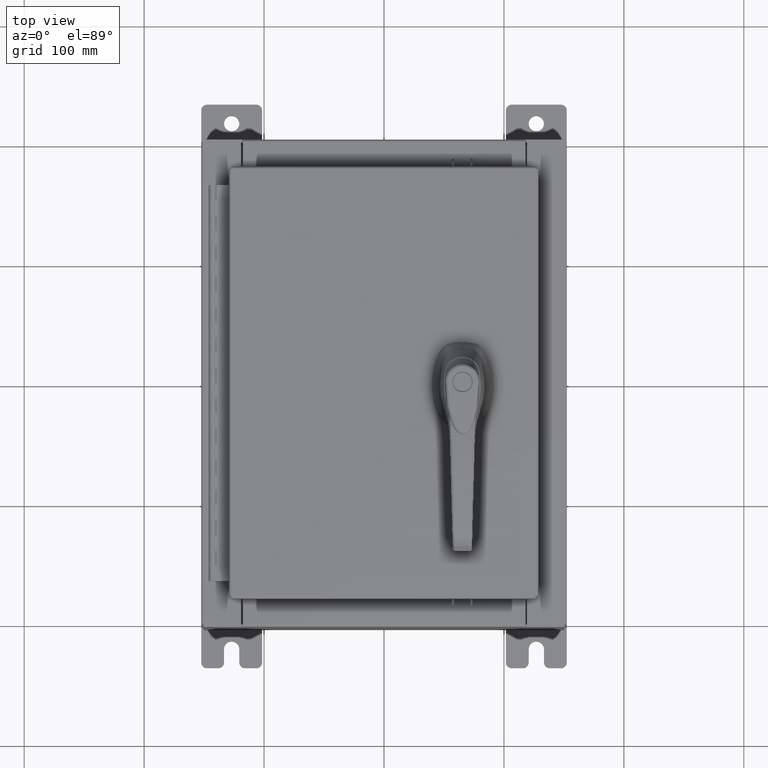
[diagram: clean part render]
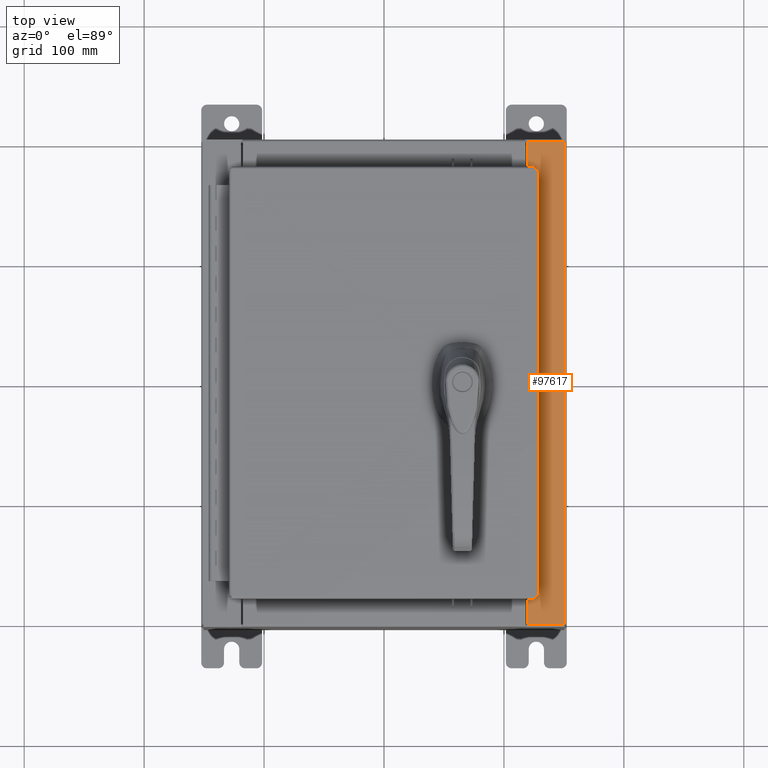
[diagram: same view with one face highlighted and labeled with its STEP entity id]
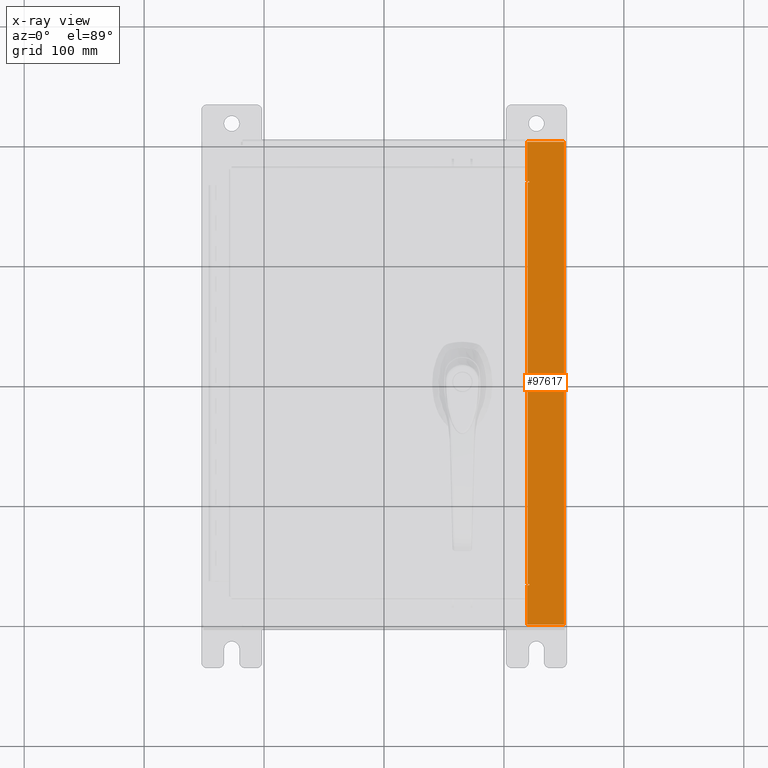
[diagram: x-ray of the same camera — body ghosted, the highlighted face saturated]
A machine part, top view. The second image highlights one B-rep face of the part: STEP entity #97617.
The next image is the same camera in x-ray: the body ghosted, the highlighted face saturated — about 0% of this face is hidden behind the body in this view.
In plain terms, the highlighted planar face has unit normal (-0, 0, -1).
Its self-contained STEP definition (entity closure, byte-faithful):
#1064 = LINE ( 'NONE', #106652, #42456 ) ;
#3250 = ORIENTED_EDGE ( 'NONE', *, *, #47122, .F. ) ;
#5049 = LINE ( 'NONE', #40311, #90470 ) ;
#6637 = CARTESIAN_POINT ( 'NONE',  ( 5.912300000000019700, -7.925300000000000000, 5.925300000000001800 ) ) ;
#7291 = EDGE_CURVE ( 'NONE', #14115, #98944, #51492, .T. ) ;
#9066 = CARTESIAN_POINT ( 'NONE',  ( 4.699700000000020400, 7.925300000000000000, 5.925300000000009800 ) ) ;
#10569 = DIRECTION ( 'NONE',  ( -1.000000000000000000, 0.0000000000000000000, 0.0000000000000000000 ) ) ;
#10730 = LINE ( 'NONE', #79950, #96224 ) ;
#12422 = AXIS2_PLACEMENT_3D ( 'NONE', #44236, #102202, #52582 ) ;
#14066 = DIRECTION ( 'NONE',  ( 1.000000000000000000, 0.0000000000000000000, 0.0000000000000000000 ) ) ;
#14115 = VERTEX_POINT ( 'NONE', #45835 ) ;
#15916 = VERTEX_POINT ( 'NONE', #52596 ) ;
#16168 = CARTESIAN_POINT ( 'NONE',  ( 4.712700000000021200, 6.593750000000000000, 5.925300000000009800 ) ) ;
#17125 = LINE ( 'NONE', #75991, #75364 ) ;
#18471 = DIRECTION ( 'NONE',  ( 1.000000000000000000, 8.915952981932975000E-016, -7.132762385546378400E-015 ) ) ;
#20497 = ORIENTED_EDGE ( 'NONE', *, *, #96892, .F. ) ;
#21444 = EDGE_CURVE ( 'NONE', #40700, #78001, #98645, .T. ) ;
#21513 = DIRECTION ( 'NONE',  ( -1.000000000000000000, 0.0000000000000000000, 7.132762385546378400E-015 ) ) ;
#23007 = ORIENTED_EDGE ( 'NONE', *, *, #88928, .T. ) ;
#27261 = CARTESIAN_POINT ( 'NONE',  ( 4.750050000000021200, 6.612425000000000000, 5.925300000000009800 ) ) ;
#27341 = AXIS2_PLACEMENT_3D ( 'NONE', #77468, #102457, #52843 ) ;
#27663 = VECTOR ( 'NONE', #67071, 39.37007874015748100 ) ;
#27872 = EDGE_CURVE ( 'NONE', #15916, #105106, #44877, .T. ) ;
#28266 = CARTESIAN_POINT ( 'NONE',  ( 4.750050000000021200, -6.593750000000000900, 5.925300000000009800 ) ) ;
#29773 = ORIENTED_EDGE ( 'NONE', *, *, #73528, .T. ) ;
#31141 = VERTEX_POINT ( 'NONE', #16168 ) ;
#32572 = VECTOR ( 'NONE', #74382, 39.37007874015748100 ) ;
#33380 = ORIENTED_EDGE ( 'NONE', *, *, #27872, .F. ) ;
#35516 = CARTESIAN_POINT ( 'NONE',  ( 4.750050000000021200, -6.631100000000000000, 5.925300000000009800 ) ) ;
#35587 = DIRECTION ( 'NONE',  ( 1.000000000000000000, 0.0000000000000000000, 0.0000000000000000000 ) ) ;
#37051 = ORIENTED_EDGE ( 'NONE', *, *, #21444, .T. ) ;
#39487 = ORIENTED_EDGE ( 'NONE', *, *, #73561, .F. ) ;
#40311 = CARTESIAN_POINT ( 'NONE',  ( 4.699700000000020400, 0.0000000000000000000, 5.925300000000009800 ) ) ;
#40700 = VERTEX_POINT ( 'NONE', #52230 ) ;
#42456 = VECTOR ( 'NONE', #48714, 39.37007874015748100 ) ;
#43816 = LINE ( 'NONE', #90621, #85318 ) ;
#44236 = CARTESIAN_POINT ( 'NONE',  ( 4.750050000000021200, -6.612425000000000900, 5.925300000000009800 ) ) ;
#44500 = PLANE ( 'NONE',  #27341 ) ;
#44877 = CIRCLE ( 'NONE', #81156, 0.01867500000000003900 ) ;
#45222 = LINE ( 'NONE', #28266, #86693 ) ;
#45835 = CARTESIAN_POINT ( 'NONE',  ( 5.912300000000019700, 7.925300000000000000, 5.925300000000001800 ) ) ;
#47122 = EDGE_CURVE ( 'NONE', #92021, #64099, #57303, .T. ) ;
#48714 = DIRECTION ( 'NONE',  ( -0.0000000000000000000, -1.000000000000000000, -0.0000000000000000000 ) ) ;
#51492 = LINE ( 'NONE', #54394, #92921 ) ;
#52230 = CARTESIAN_POINT ( 'NONE',  ( 4.699700000000020400, -6.631100000000000900, 5.925300000000009800 ) ) ;
#52582 = DIRECTION ( 'NONE',  ( 1.000000000000000000, 0.0000000000000000000, 0.0000000000000000000 ) ) ;
#52596 = CARTESIAN_POINT ( 'NONE',  ( 4.750050000000021200, 6.593749999999999100, 5.925300000000009800 ) ) ;
#52823 = EDGE_CURVE ( 'NONE', #14115, #93496, #1064, .T. ) ;
#52843 = DIRECTION ( 'NONE',  ( -1.000000000000000000, 0.0000000000000000000, 7.132762385546378400E-015 ) ) ;
#53347 = ORIENTED_EDGE ( 'NONE', *, *, #59301, .F. ) ;
#54394 = CARTESIAN_POINT ( 'NONE',  ( 4.252457061908984900E-014, 7.925300000000000000, 5.925300000000044400 ) ) ;
#55334 = VECTOR ( 'NONE', #10569, 39.37007874015748100 ) ;
#57303 = CIRCLE ( 'NONE', #12422, 0.01867500000000003900 ) ;
#57791 = VERTEX_POINT ( 'NONE', #68225 ) ;
#58745 = CARTESIAN_POINT ( 'NONE',  ( 4.712700000000021200, 6.593750000000000000, 5.925300000000009800 ) ) ;
#59164 = CARTESIAN_POINT ( 'NONE',  ( 4.750050000000021200, 6.631100000000000000, 5.925300000000009800 ) ) ;
#59301 = EDGE_CURVE ( 'NONE', #40700, #92021, #10730, .T. ) ;
#60170 = CARTESIAN_POINT ( 'NONE',  ( 4.750050000000021200, 6.631100000000000000, 5.925300000000009800 ) ) ;
#64099 = VERTEX_POINT ( 'NONE', #78539 ) ;
#67071 = DIRECTION ( 'NONE',  ( 1.000000000000000000, 0.0000000000000000000, 0.0000000000000000000 ) ) ;
#67841 = EDGE_CURVE ( 'NONE', #105106, #57791, #85162, .T. ) ;
#68225 = CARTESIAN_POINT ( 'NONE',  ( 4.699700000000020400, 6.631099999999999100, 5.925300000000009800 ) ) ;
#70748 = ORIENTED_EDGE ( 'NONE', *, *, #67841, .F. ) ;
#73284 = DIRECTION ( 'NONE',  ( 0.0000000000000000000, -1.000000000000000000, 0.0000000000000000000 ) ) ;
#73528 = EDGE_CURVE ( 'NONE', #98944, #57791, #5049, .T. ) ;
#73561 = EDGE_CURVE ( 'NONE', #77209, #31141, #43816, .T. ) ;
#74186 = FACE_OUTER_BOUND ( 'NONE', #78950, .T. ) ;
#74382 = DIRECTION ( 'NONE',  ( 0.0000000000000000000, -1.000000000000000000, 0.0000000000000000000 ) ) ;
#74510 = EDGE_CURVE ( 'NONE', #64099, #77209, #45222, .T. ) ;
#75364 = VECTOR ( 'NONE', #18471, 39.37007874015748100 ) ;
#75674 = CARTESIAN_POINT ( 'NONE',  ( 4.712700000000021200, -6.593750000000000900, 5.925300000000009800 ) ) ;
#75991 = CARTESIAN_POINT ( 'NONE',  ( 4.959073083586120100E-014, -7.925300000000005300, 5.925300000000044400 ) ) ;
#77209 = VERTEX_POINT ( 'NONE', #75674 ) ;
#77468 = CARTESIAN_POINT ( 'NONE',  ( 4.252457061908984900E-014, 0.0000000000000000000, 5.925300000000044400 ) ) ;
#78001 = VERTEX_POINT ( 'NONE', #99099 ) ;
#78237 = DIRECTION ( 'NONE',  ( -1.000000000000000000, 0.0000000000000000000, 0.0000000000000000000 ) ) ;
#78539 = CARTESIAN_POINT ( 'NONE',  ( 4.750050000000021200, -6.593750000000000900, 5.925300000000009800 ) ) ;
#78950 = EDGE_LOOP ( 'NONE', ( #53347, #37051, #23007, #99837, #106167, #29773, #70748, #33380, #20497, #39487, #94307, #3250 ) ) ;
#79950 = CARTESIAN_POINT ( 'NONE',  ( 4.699700000000020400, -6.631100000000000900, 5.925300000000009800 ) ) ;
#81156 = AXIS2_PLACEMENT_3D ( 'NONE', #27261, #85211, #35587 ) ;
#85162 = LINE ( 'NONE', #60170, #55334 ) ;
#85211 = DIRECTION ( 'NONE',  ( 7.132762385546378400E-015, 0.0000000000000000000, 1.000000000000000000 ) ) ;
#85318 = VECTOR ( 'NONE', #107292, 39.37007874015748100 ) ;
#86693 = VECTOR ( 'NONE', #78237, 39.37007874015748100 ) ;
#88928 = EDGE_CURVE ( 'NONE', #78001, #93496, #17125, .T. ) ;
#90470 = VECTOR ( 'NONE', #73284, 39.37007874015748100 ) ;
#90621 = CARTESIAN_POINT ( 'NONE',  ( 4.712700000000021200, -6.593750000000002700, 5.925300000000009800 ) ) ;
#90644 = CARTESIAN_POINT ( 'NONE',  ( 4.699700000000020400, 0.0000000000000000000, 5.925300000000009800 ) ) ;
#92021 = VERTEX_POINT ( 'NONE', #35516 ) ;
#92921 = VECTOR ( 'NONE', #21513, 39.37007874015748100 ) ;
#93496 = VERTEX_POINT ( 'NONE', #6637 ) ;
#93703 = LINE ( 'NONE', #58745, #27663 ) ;
#94307 = ORIENTED_EDGE ( 'NONE', *, *, #74510, .F. ) ;
#96224 = VECTOR ( 'NONE', #14066, 39.37007874015748100 ) ;
#96892 = EDGE_CURVE ( 'NONE', #31141, #15916, #93703, .T. ) ;
#97617 = ADVANCED_FACE ( 'NONE', ( #74186 ), #44500, .F. ) ;
#98645 = LINE ( 'NONE', #90644, #32572 ) ;
#98944 = VERTEX_POINT ( 'NONE', #9066 ) ;
#99099 = CARTESIAN_POINT ( 'NONE',  ( 4.699700000000020400, -7.925300000000000900, 5.925300000000009800 ) ) ;
#99837 = ORIENTED_EDGE ( 'NONE', *, *, #52823, .F. ) ;
#102202 = DIRECTION ( 'NONE',  ( 7.132762385546378400E-015, 0.0000000000000000000, 1.000000000000000000 ) ) ;
#102457 = DIRECTION ( 'NONE',  ( -7.132762385546378400E-015, 0.0000000000000000000, -1.000000000000000000 ) ) ;
#105106 = VERTEX_POINT ( 'NONE', #59164 ) ;
#106167 = ORIENTED_EDGE ( 'NONE', *, *, #7291, .T. ) ;
#106652 = CARTESIAN_POINT ( 'NONE',  ( 5.912300000000019700, -7.925300000000000000, 5.925300000000001800 ) ) ;
#107292 = DIRECTION ( 'NONE',  ( -0.0000000000000000000, 1.000000000000000000, -0.0000000000000000000 ) ) ;